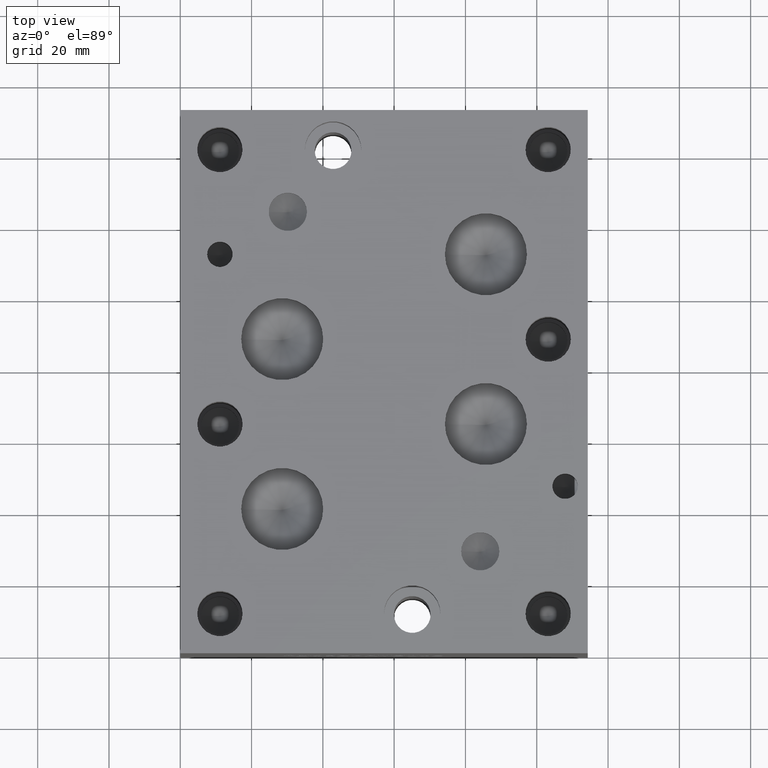
[diagram: clean part render]
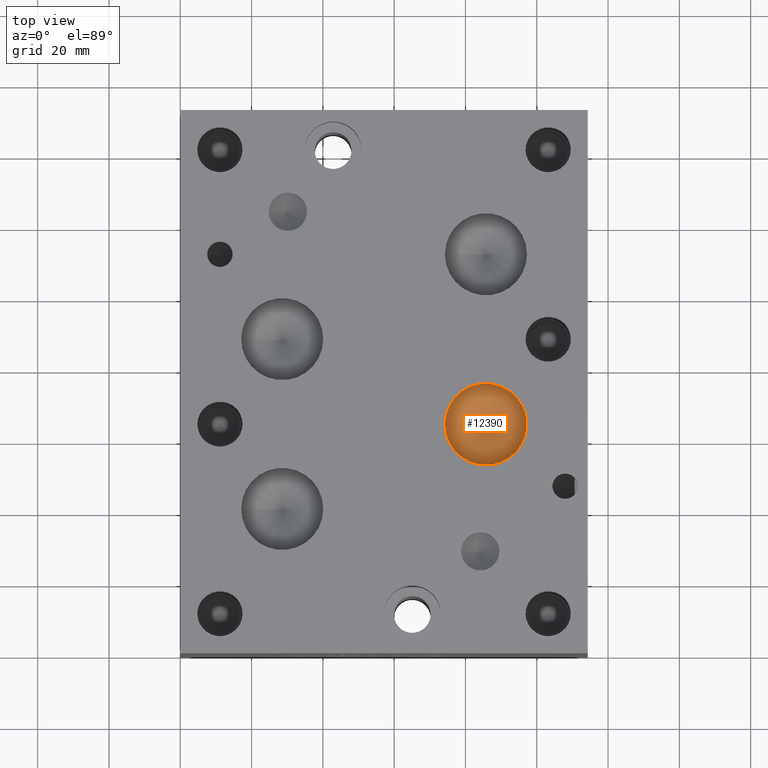
[diagram: same view with one face highlighted and labeled with its STEP entity id]
A machine part, top view. The second image highlights one B-rep face of the part: STEP entity #12390.
In plain terms, the highlighted conical surface has half-angle 60 deg.
Its self-contained STEP definition (entity closure, byte-faithful):
#61=CONICAL_SURFACE('',#13091,5.7531,1.0471975511966);
#357=CIRCLE('',#13092,11.5062);
#358=CIRCLE('',#13093,11.5062);
#1460=FACE_OUTER_BOUND('',#2168,.T.);
#2168=EDGE_LOOP('',(#10953,#10954,#10955,#10956));
#3307=LINE('',#21507,#4412);
#4412=VECTOR('',#15569,5.7531);
#5901=VERTEX_POINT('',#21503);
#5902=VERTEX_POINT('',#21504);
#5903=VERTEX_POINT('',#21506);
#7616=EDGE_CURVE('',#5901,#5902,#357,.T.);
#7617=EDGE_CURVE('',#5902,#5903,#3307,.T.);
#7618=EDGE_CURVE('',#5902,#5901,#358,.T.);
#10953=ORIENTED_EDGE('',*,*,#7616,.T.);
#10954=ORIENTED_EDGE('',*,*,#7617,.T.);
#10955=ORIENTED_EDGE('',*,*,#7617,.F.);
#10956=ORIENTED_EDGE('',*,*,#7618,.T.);
#12390=ADVANCED_FACE('',(#1460),#61,.F.);
#13091=AXIS2_PLACEMENT_3D('',#21502,#15565,#15566);
#13092=AXIS2_PLACEMENT_3D('',#21505,#15567,#15568);
#13093=AXIS2_PLACEMENT_3D('',#21508,#15570,#15571);
#15565=DIRECTION('center_axis',(0.,0.,1.));
#15566=DIRECTION('ref_axis',(1.,0.,0.));
#15567=DIRECTION('center_axis',(0.,0.,1.));
#15568=DIRECTION('ref_axis',(1.,0.,0.));
#15569=DIRECTION('',(0.866025403784439,1.06057523872491E-16,-0.5));
#15570=DIRECTION('center_axis',(0.,0.,1.));
#15571=DIRECTION('ref_axis',(1.,0.,0.));
#21502=CARTESIAN_POINT('Origin',(85.725,64.2874,66.2353361663252));
#21503=CARTESIAN_POINT('',(97.2312,64.2874,69.55689));
#21504=CARTESIAN_POINT('',(74.2188,64.2874,69.55689));
#21505=CARTESIAN_POINT('Origin',(85.725,64.2874,69.55689));
#21506=CARTESIAN_POINT('',(85.725,64.2874,62.9137823326503));
#21507=CARTESIAN_POINT('',(79.9719,64.2874,66.2353361663252));
#21508=CARTESIAN_POINT('Origin',(85.725,64.2874,69.55689));